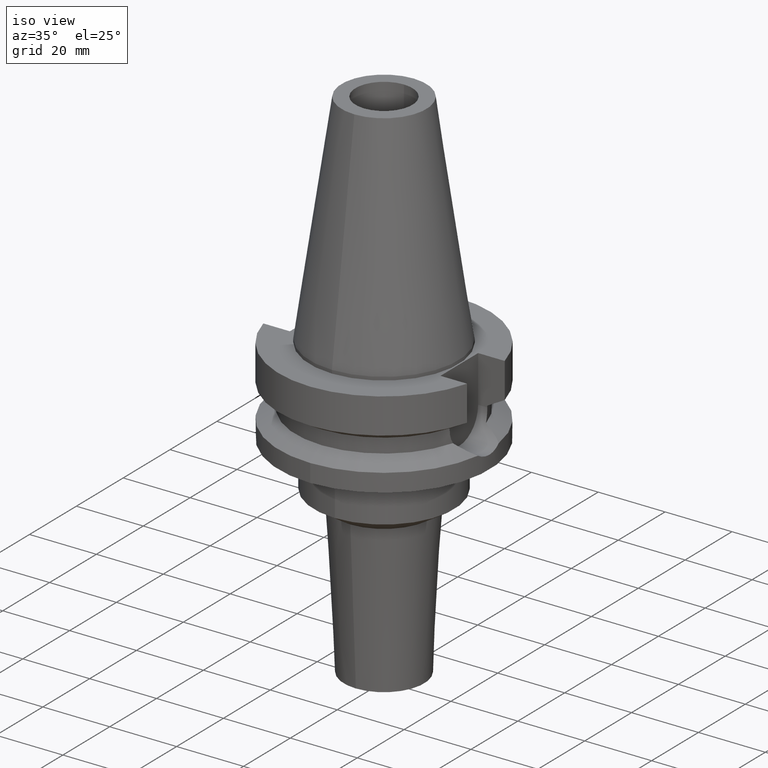
[diagram: clean part render]
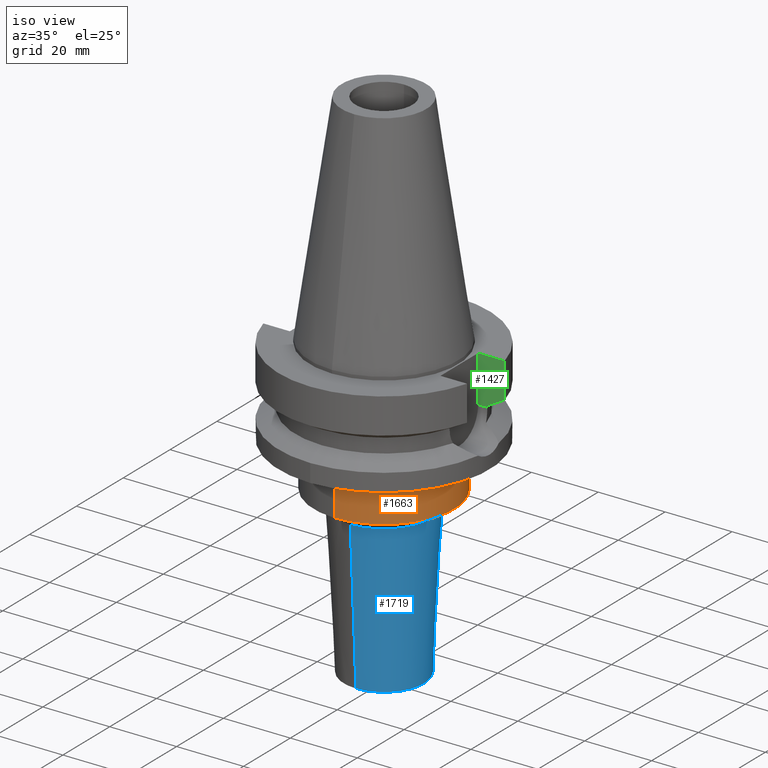
[diagram: same view with three faces highlighted in distinct colors, each labeled with its STEP entity id]
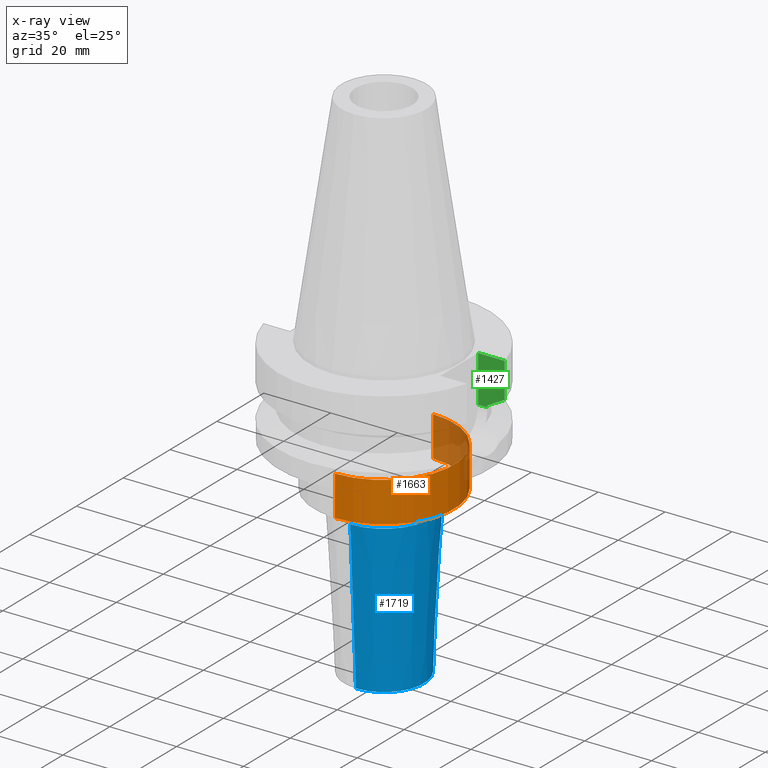
[diagram: x-ray of the same camera — body ghosted, the three highlighted faces saturated]
A machine part, iso view with three faces highlighted in distinct colors.
The next image is the same camera in x-ray (body ghosted, the three faces saturated) — at least one of them is partly hidden behind the body in this view.
Their STEP definitions:

[orange] entity #1663 — the highlighted cylindrical surface (partial cylindrical patch) has radius 21 mm, axis along (0, 0, -1).
#683=CARTESIAN_POINT('',(0.E0,0.E0,-2.85E1));
#684=DIRECTION('',(0.E0,0.E0,-1.E0));
#685=DIRECTION('',(0.E0,1.E0,0.E0));
#686=AXIS2_PLACEMENT_3D('',#683,#684,#685);
#691=DIRECTION('',(0.E0,-9.503509090793E-14,-1.E0));
#692=VECTOR('',#691,1.2E1);
#693=CARTESIAN_POINT('',(0.E0,2.1E1,-2.85E1));
#694=LINE('',#693,#692);
#698=DIRECTION('',(0.E0,9.533115038116E-14,-1.E0));
#699=VECTOR('',#698,1.2E1);
#700=CARTESIAN_POINT('',(0.E0,-2.1E1,-2.85E1));
#701=LINE('',#700,#699);
#735=CARTESIAN_POINT('',(0.E0,0.E0,-4.05E1));
#736=DIRECTION('',(0.E0,0.E0,1.E0));
#737=DIRECTION('',(0.E0,-1.E0,0.E0));
#738=AXIS2_PLACEMENT_3D('',#735,#736,#737);
#1081=CARTESIAN_POINT('',(0.E0,2.1E1,-4.05E1));
#1082=VERTEX_POINT('',#1081);
#1083=CARTESIAN_POINT('',(0.E0,-2.1E1,-4.05E1));
#1084=VERTEX_POINT('',#1083);
#1085=CARTESIAN_POINT('',(0.E0,2.1E1,-2.85E1));
#1086=VERTEX_POINT('',#1085);
#1087=CARTESIAN_POINT('',(0.E0,-2.1E1,-2.85E1));
#1088=VERTEX_POINT('',#1087);
#1649=CARTESIAN_POINT('',(0.E0,2.120720862083E-14,7.317E1));
#1650=DIRECTION('',(0.E0,0.E0,-1.E0));
#1651=DIRECTION('',(0.E0,-1.E0,0.E0));
#1652=AXIS2_PLACEMENT_3D('',#1649,#1650,#1651);
#1653=CYLINDRICAL_SURFACE('',#1652,2.1E1);
#1655=ORIENTED_EDGE('',*,*,#1654,.T.);
#1657=ORIENTED_EDGE('',*,*,#1656,.F.);
#1659=ORIENTED_EDGE('',*,*,#1658,.F.);
#1660=ORIENTED_EDGE('',*,*,#1642,.F.);
#1661=EDGE_LOOP('',(#1655,#1657,#1659,#1660));
#1662=FACE_OUTER_BOUND('',#1661,.F.);
#687=CIRCLE('',#686,2.1E1);
#739=CIRCLE('',#738,2.1E1);
#1642=EDGE_CURVE('',#1086,#1088,#687,.T.);
#1654=EDGE_CURVE('',#1086,#1082,#694,.T.);
#1656=EDGE_CURVE('',#1084,#1082,#739,.T.);
#1658=EDGE_CURVE('',#1088,#1084,#701,.T.);
#1663=ADVANCED_FACE('',(#1662),#1653,.T.);

[blue] entity #1719 — the highlighted conical surface has half-angle 3 deg.
#743=DIRECTION('',(0.E0,-5.233595624288E-2,-9.986295347546E-1));
#744=VECTOR('',#743,4.530018193302E1);
#745=CARTESIAN_POINT('',(0.E0,1.437082833944E1,-4.476190039193E1));
#746=LINE('',#745,#744);
#750=CARTESIAN_POINT('',(0.E0,0.E0,-4.476190039193E1));
#751=DIRECTION('',(0.E0,0.E0,1.E0));
#752=DIRECTION('',(0.E0,-1.E0,0.E0));
#753=AXIS2_PLACEMENT_3D('',#750,#751,#752);
#758=DIRECTION('',(0.E0,5.233595624288E-2,-9.986295347546E-1));
#759=VECTOR('',#758,4.530018193302E1);
#760=CARTESIAN_POINT('',(0.E0,-1.437082833944E1,-4.476190039193E1));
#761=LINE('',#760,#759);
#765=CARTESIAN_POINT('',(0.E0,0.E0,-9.E1));
#766=DIRECTION('',(0.E0,0.E0,1.E0));
#767=DIRECTION('',(0.E0,-1.E0,0.E0));
#768=AXIS2_PLACEMENT_3D('',#765,#766,#767);
#1073=CARTESIAN_POINT('',(0.E0,-1.2E1,-9.E1));
#1074=CARTESIAN_POINT('',(0.E0,1.2E1,-9.E1));
#1075=VERTEX_POINT('',#1073);
#1076=VERTEX_POINT('',#1074);
#1077=CARTESIAN_POINT('',(0.E0,1.437082833944E1,-4.476190039193E1));
#1078=VERTEX_POINT('',#1077);
#1079=CARTESIAN_POINT('',(0.E0,-1.437082833944E1,-4.476190039193E1));
#1080=VERTEX_POINT('',#1079);
#1705=CARTESIAN_POINT('',(0.E0,0.E0,-6.738095019596E1));
#1706=DIRECTION('',(0.E0,0.E0,1.E0));
#1707=DIRECTION('',(0.E0,1.E0,0.E0));
#1708=AXIS2_PLACEMENT_3D('',#1705,#1706,#1707);
#1709=CONICAL_SURFACE('',#1708,1.318541416972E1,3.E0);
#1711=ORIENTED_EDGE('',*,*,#1710,.T.);
#1713=ORIENTED_EDGE('',*,*,#1712,.F.);
#1715=ORIENTED_EDGE('',*,*,#1714,.F.);
#1716=ORIENTED_EDGE('',*,*,#1698,.T.);
#1717=EDGE_LOOP('',(#1711,#1713,#1715,#1716));
#1718=FACE_OUTER_BOUND('',#1717,.F.);
#754=CIRCLE('',#753,1.437082833944E1);
#769=CIRCLE('',#768,1.2E1);
#1698=EDGE_CURVE('',#1080,#1078,#754,.T.);
#1710=EDGE_CURVE('',#1078,#1076,#746,.T.);
#1712=EDGE_CURVE('',#1075,#1076,#769,.T.);
#1714=EDGE_CURVE('',#1080,#1075,#761,.T.);
#1719=ADVANCED_FACE('',(#1718),#1709,.T.);

[green] entity #1427 — the highlighted planar face has unit normal (0, 1, 0).
#307=DIRECTION('',(0.E0,0.E0,-1.E0));
#308=VECTOR('',#307,1.395E1);
#309=CARTESIAN_POINT('',(2.25E1,8.05E0,-1.E0));
#310=LINE('',#309,#308);
#337=DIRECTION('',(1.E0,-3.506251283226E-14,0.E0));
#338=VECTOR('',#337,7.954022722788E0);
#339=CARTESIAN_POINT('',(2.25E1,8.05E0,-1.E0));
#340=LINE('',#339,#338);
#344=CARTESIAN_POINT('',(3.045402291389E1,8.049999277024E0,-1.156551216436E1));
#345=CARTESIAN_POINT('',(2.987645774819E1,8.049999277024E0,-1.188789691187E1));
#346=CARTESIAN_POINT('',(2.872091192782E1,8.049999725939E0,-1.253193838564E1));
#347=CARTESIAN_POINT('',(2.698538656632E1,8.050002043677E0,-1.349404326788E1));
#348=CARTESIAN_POINT('',(2.582730531235E1,8.049995414128E0,-1.413348341696E1));
#349=CARTESIAN_POINT('',(2.524772413174E1,8.049995414128E0,-1.445229204066E1));
#381=DIRECTION('',(2.937789781755E-6,-9.213981180956E-6,9.999999999532E-1));
#382=VECTOR('',#381,4.977079593662E-1);
#383=CARTESIAN_POINT('',(2.524772266958E1,8.05E0,-1.495E1));
#384=LINE('',#383,#382);
#437=DIRECTION('',(-1.808768633101E-8,6.842791639759E-8,1.E0));
#438=VECTOR('',#437,1.056551216436E1);
#439=CARTESIAN_POINT('',(3.045402291389E1,8.049999277024E0,-1.156551216436E1));
#440=LINE('',#439,#438);
#532=DIRECTION('',(1.E0,-1.551559937893E-14,0.E0));
#533=VECTOR('',#532,2.747722669580E0);
#534=CARTESIAN_POINT('',(2.25E1,8.05E0,-1.495E1));
#535=LINE('',#534,#533);
#1110=CARTESIAN_POINT('',(2.25E1,8.05E0,-1.495E1));
#1111=VERTEX_POINT('',#1110);
#1112=CARTESIAN_POINT('',(2.524772266958E1,8.05E0,-1.495E1));
#1113=VERTEX_POINT('',#1112);
#1140=CARTESIAN_POINT('',(2.524772413174E1,8.049995414128E0,-1.445229204066E1));
#1141=VERTEX_POINT('',#1140);
#1155=CARTESIAN_POINT('',(3.045402272279E1,8.05E0,-1.E0));
#1157=VERTEX_POINT('',#1155);
#1158=CARTESIAN_POINT('',(2.25E1,8.05E0,-1.E0));
#1159=VERTEX_POINT('',#1158);
#1179=VERTEX_POINT('',#344);
#1410=CARTESIAN_POINT('',(2.25E1,8.05E0,-1.495E1));
#1411=DIRECTION('',(0.E0,1.E0,0.E0));
#1412=DIRECTION('',(0.E0,0.E0,1.E0));
#1413=AXIS2_PLACEMENT_3D('',#1410,#1411,#1412);
#1414=PLANE('',#1413);
#1416=ORIENTED_EDGE('',*,*,#1415,.F.);
#1418=ORIENTED_EDGE('',*,*,#1417,.F.);
#1419=ORIENTED_EDGE('',*,*,#1400,.F.);
#1420=ORIENTED_EDGE('',*,*,#1269,.T.);
#1422=ORIENTED_EDGE('',*,*,#1421,.F.);
#1424=ORIENTED_EDGE('',*,*,#1423,.T.);
#1425=EDGE_LOOP('',(#1416,#1418,#1419,#1420,#1422,#1424));
#1426=FACE_OUTER_BOUND('',#1425,.F.);
#350=B_SPLINE_CURVE_WITH_KNOTS('',3,(#344,#345,#346,#347,#348,#349),
.UNSPECIFIED.,.F.,.F.,(4,1,1,4),(0.E0,3.333333333333E-1,6.666666666667E-1,1.E0),
.UNSPECIFIED.);
#1269=EDGE_CURVE('',#1159,#1157,#340,.T.);
#1400=EDGE_CURVE('',#1159,#1111,#310,.T.);
#1415=EDGE_CURVE('',#1113,#1141,#384,.T.);
#1417=EDGE_CURVE('',#1111,#1113,#535,.T.);
#1421=EDGE_CURVE('',#1179,#1157,#440,.T.);
#1423=EDGE_CURVE('',#1179,#1141,#350,.T.);
#1427=ADVANCED_FACE('',(#1426),#1414,.F.);